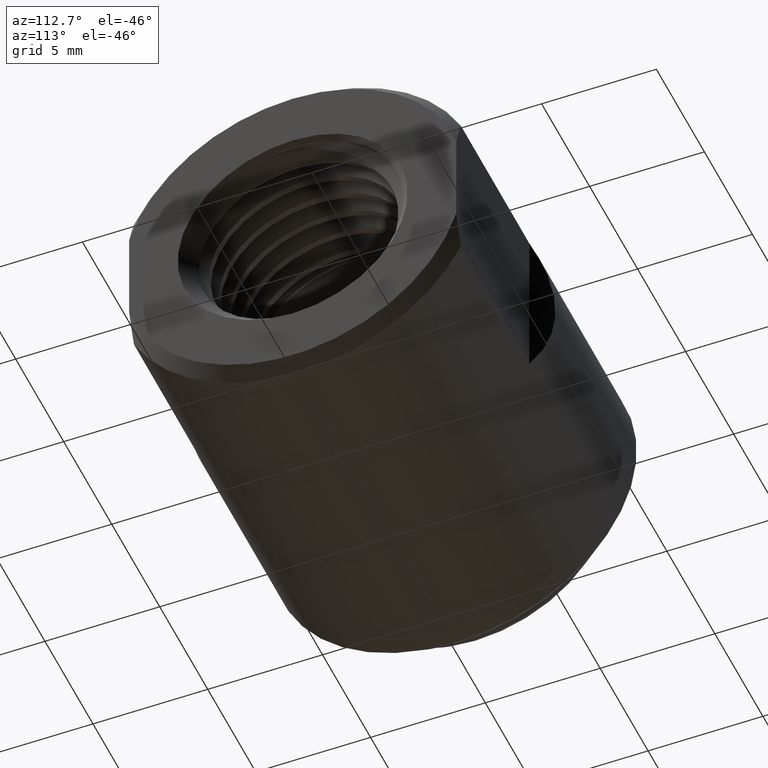
[diagram: clean part render]
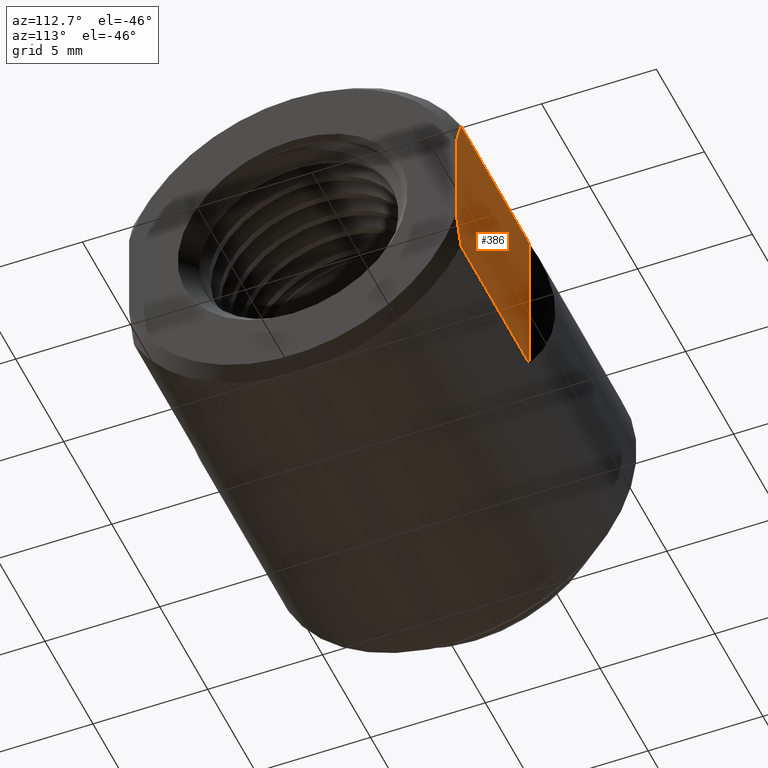
[diagram: same view with one face highlighted and labeled with its STEP entity id]
A machine part, auxiliary view. The second image highlights one B-rep face of the part: STEP entity #386.
In plain terms, the highlighted planar face has unit normal (0, -1, 0).
Its self-contained STEP definition (entity closure, byte-faithful):
#215 = CARTESIAN_POINT ( 'NONE',  ( 0.5876977962549014833, 0.2804999999999999716, 0.1002213749993014630 ) ) ;
#386 = ADVANCED_FACE ( 'NONE', ( #7433 ), #5583, .F. ) ;
#421 = LINE ( 'NONE', #9190, #2481 ) ;
#447 = ORIENTED_EDGE ( 'NONE', *, *, #802, .T. ) ;
#802 = EDGE_CURVE ( 'NONE', #12411, #12488, #6926, .T. ) ;
#1239 = CARTESIAN_POINT ( 'NONE',  ( 0.5808694484196408325, 0.2804999999999999716, 0.1186432107905465855 ) ) ;
#1876 = CARTESIAN_POINT ( 'NONE',  ( 0.5929999999999999716, 0.2804999999999999716, 0.08114031057372160516 ) ) ;
#2001 = CARTESIAN_POINT ( 'NONE',  ( 0.5877539723696620921, 0.2804999999999999716, -0.1000192137628690553 ) ) ;
#2071 = LINE ( 'NONE', #7841, #4200 ) ;
#2385 = CARTESIAN_POINT ( 'NONE',  ( 0.5729999999999999538, 0.2804999999999999716, 0.1366153358887646496 ) ) ;
#2481 = VECTOR ( 'NONE', #8176, 39.37007874015748143 ) ;
#2820 = CARTESIAN_POINT ( 'NONE',  ( 0.5729999999999999538, 0.2804999999999999716, -0.1366153358887646496 ) ) ;
#3013 = VERTEX_POINT ( 'NONE', #10797 ) ;
#3582 = EDGE_CURVE ( 'NONE', #4473, #9411, #7399, .T. ) ;
#3712 = EDGE_LOOP ( 'NONE', ( #5726, #447, #5289, #7047, #8690, #5836 ) ) ;
#3959 = AXIS2_PLACEMENT_3D ( 'NONE', #12276, #10308, #8450 ) ;
#4200 = VECTOR ( 'NONE', #12568, 39.37007874015748143 ) ;
#4473 = VERTEX_POINT ( 'NONE', #5399 ) ;
#5289 = ORIENTED_EDGE ( 'NONE', *, *, #5364, .F. ) ;
#5364 = EDGE_CURVE ( 'NONE', #6159, #12488, #2071, .T. ) ;
#5399 = CARTESIAN_POINT ( 'NONE',  ( 0.5729999999999999538, 0.2804999999999999716, -0.1366153358887646496 ) ) ;
#5583 = PLANE ( 'NONE',  #3959 ) ;
#5726 = ORIENTED_EDGE ( 'NONE', *, *, #10157, .T. ) ;
#5836 = ORIENTED_EDGE ( 'NONE', *, *, #9552, .T. ) ;
#5856 = CARTESIAN_POINT ( 'NONE',  ( 0.5808675210167417724, 0.2804999999999999716, -0.1186476125636022477 ) ) ;
#6159 = VERTEX_POINT ( 'NONE', #11299 ) ;
#6316 = DIRECTION ( 'NONE',  ( -1.000000000000000000, -0.0000000000000000000, -0.0000000000000000000 ) ) ;
#6730 = LINE ( 'NONE', #10554, #9979 ) ;
#6926 = B_SPLINE_CURVE_WITH_KNOTS ( 'NONE', 3,
 ( #2385, #1239, #215, #7137 ),
 .UNSPECIFIED., .F., .F.,
 ( 4, 4 ),
 ( 0.01572552264565490673, 0.01722347751484201023 ),
 .UNSPECIFIED. ) ;
#7047 = ORIENTED_EDGE ( 'NONE', *, *, #7253, .T. ) ;
#7137 = CARTESIAN_POINT ( 'NONE',  ( 0.5929999999999999716, 0.2804999999999999716, 0.08114031057372160516 ) ) ;
#7253 = EDGE_CURVE ( 'NONE', #6159, #4473, #12575, .T. ) ;
#7399 = LINE ( 'NONE', #11294, #9264 ) ;
#7433 = FACE_OUTER_BOUND ( 'NONE', #3712, .T. ) ;
#7841 = CARTESIAN_POINT ( 'NONE',  ( 0.5929999999999999716, 0.2804999999999999716, -0.3119999999999999996 ) ) ;
#8176 = DIRECTION ( 'NONE',  ( -0.0000000000000000000, -0.0000000000000000000, 1.000000000000000000 ) ) ;
#8450 = DIRECTION ( 'NONE',  ( 1.000000000000000000, 1.138269997360109921E-16, 0.0000000000000000000 ) ) ;
#8690 = ORIENTED_EDGE ( 'NONE', *, *, #3582, .T. ) ;
#9190 = CARTESIAN_POINT ( 'NONE',  ( 0.2929999999999999272, 0.2804999999999999716, -0.3119999999999999996 ) ) ;
#9264 = VECTOR ( 'NONE', #6316, 39.37007874015748143 ) ;
#9411 = VERTEX_POINT ( 'NONE', #10745 ) ;
#9552 = EDGE_CURVE ( 'NONE', #9411, #3013, #421, .T. ) ;
#9979 = VECTOR ( 'NONE', #12593, 39.37007874015748143 ) ;
#10157 = EDGE_CURVE ( 'NONE', #3013, #12411, #6730, .T. ) ;
#10308 = DIRECTION ( 'NONE',  ( 1.138269997360109921E-16, -1.000000000000000000, 0.0000000000000000000 ) ) ;
#10554 = CARTESIAN_POINT ( 'NONE',  ( -3.192847342595107575E-17, 0.2804999999999999161, 0.1366153358887647884 ) ) ;
#10584 = CARTESIAN_POINT ( 'NONE',  ( 0.5729999999999999538, 0.2804999999999999716, 0.1366153358887646496 ) ) ;
#10745 = CARTESIAN_POINT ( 'NONE',  ( 0.2929999999999999272, 0.2804999999999999716, -0.1366153358887647884 ) ) ;
#10771 = CARTESIAN_POINT ( 'NONE',  ( 0.5929999999999999716, 0.2804999999999999716, -0.08114031057372161904 ) ) ;
#10797 = CARTESIAN_POINT ( 'NONE',  ( 0.2929999999999999272, 0.2804999999999999716, 0.1366153358887647884 ) ) ;
#11294 = CARTESIAN_POINT ( 'NONE',  ( -3.192847342595107575E-17, 0.2804999999999999161, -0.1366153358887647884 ) ) ;
#11299 = CARTESIAN_POINT ( 'NONE',  ( 0.5929999999999999716, 0.2804999999999999716, -0.08114031057372161904 ) ) ;
#12276 = CARTESIAN_POINT ( 'NONE',  ( 0.5929999999999999716, 0.2804999999999999716, -0.3119999999999999996 ) ) ;
#12411 = VERTEX_POINT ( 'NONE', #10584 ) ;
#12488 = VERTEX_POINT ( 'NONE', #1876 ) ;
#12568 = DIRECTION ( 'NONE',  ( -0.0000000000000000000, -0.0000000000000000000, 1.000000000000000000 ) ) ;
#12575 = B_SPLINE_CURVE_WITH_KNOTS ( 'NONE', 3,
 ( #10771, #2001, #5856, #2820 ),
 .UNSPECIFIED., .F., .F.,
 ( 4, 4 ),
 ( 0.02139957257847289324, 0.02289542820996243178 ),
 .UNSPECIFIED. ) ;
#12593 = DIRECTION ( 'NONE',  ( 1.000000000000000000, 0.0000000000000000000, 0.0000000000000000000 ) ) ;